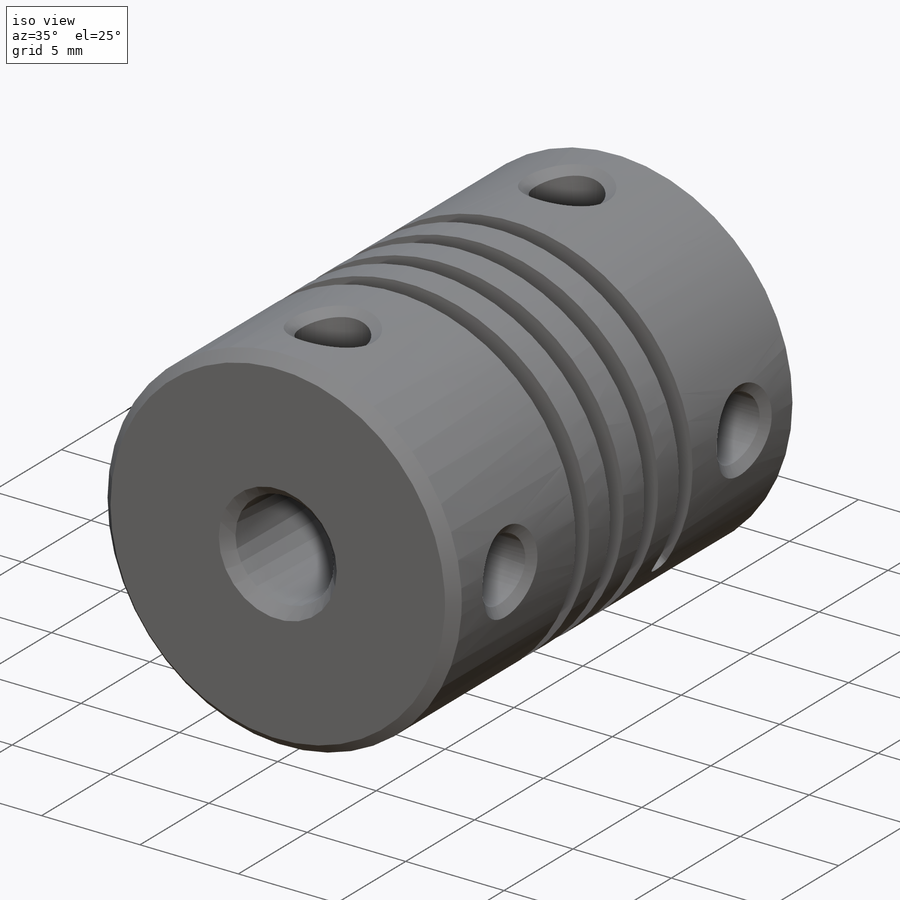
[diagram: iso view]
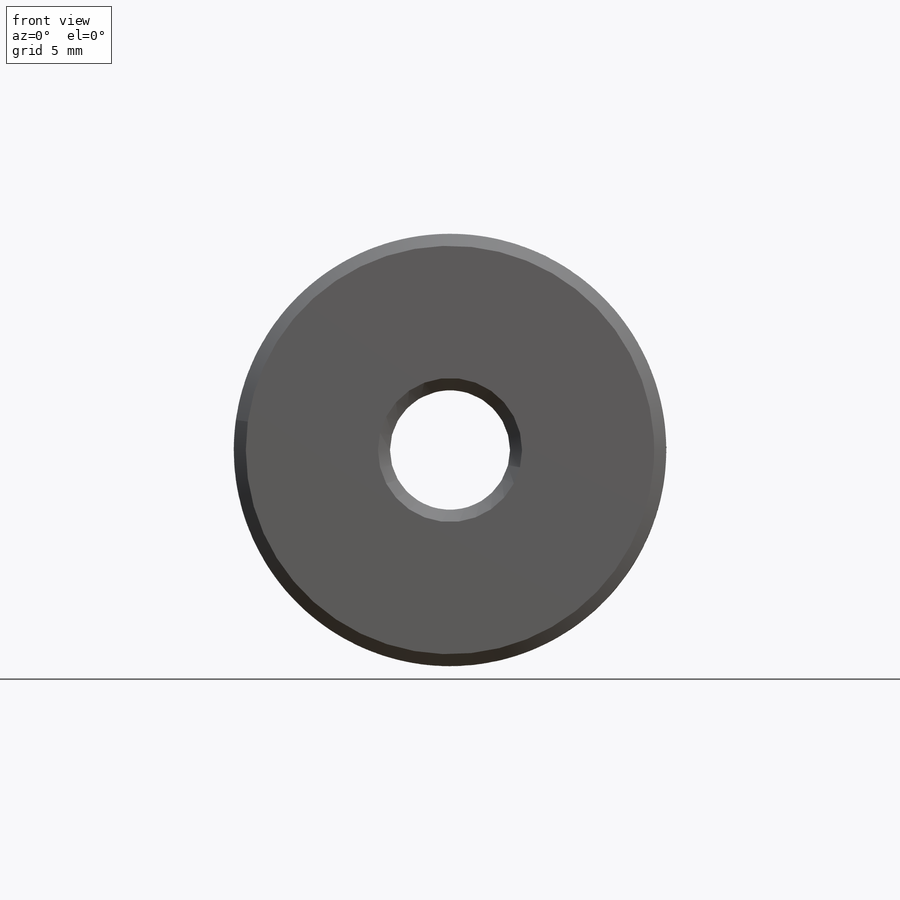
[diagram: front view]
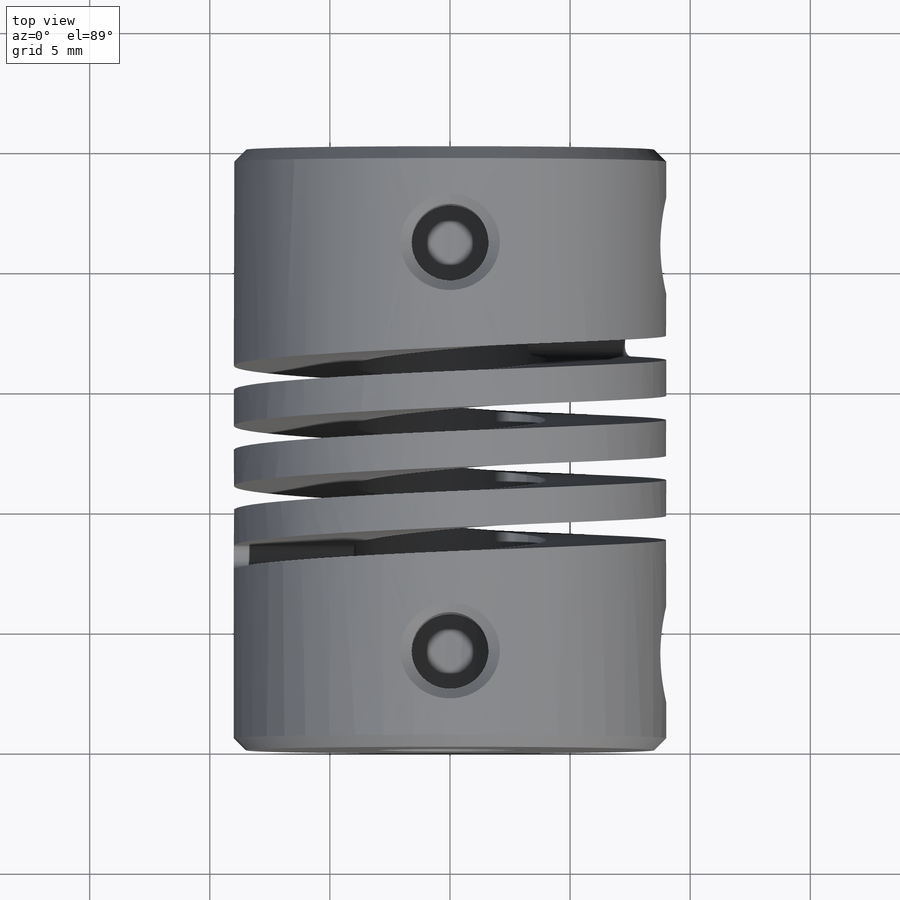
[diagram: top view]
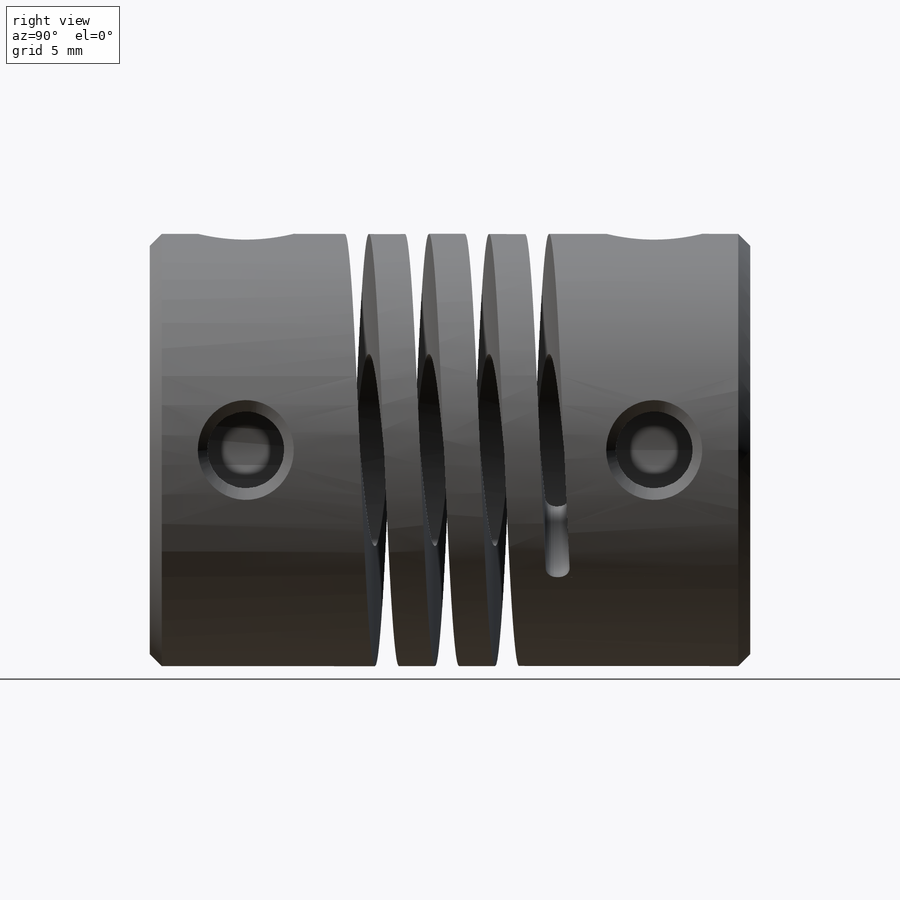
[diagram: right view]
SOLIDWORKS PART (.sldprt)
format: sldprt  version: not decoded by parser v0  size: 518,144 bytes
history: native  units: mm
features: sketch x7, cut_extrude x4, material x1, extrude x1, plane x1, helix x1, sweep x1, fillet x1, chamfer x1 (+12 scaffold rows collapsed)
feature tree (30):
  scaffold x12  (default folders/planes/origin — collapsed)
  material  "6061 Alloy"
  sketch  "Sketch1"  dims[D1=18.0mm]
  extrude  "Boss-Extrude1"  Depth=25mm
  plane  "Plane1"  Offset=8mm
  sketch  "Sketch2"
  helix  "Helix/Spiral1"  Pitch=9mm
  sketch  "Sketch3"  dims[D1=8.0mm D2=1.0mm D3=2.0mm]
  sweep  "Cut-Sweep1"
  sketch  "Sketch4"  dims[D1=5.0mm]
  cut_extrude  "Cut-Extrude1"  [1 undecoded]
  sketch  "Sketch5"  dims[D1=8.0mm]
  cut_extrude  "Cut-Extrude2"  Depth=17.5mm
  fillet  "Fillet1"  Radius=0.45mm
  sketch  "Sketch6"  dims[c1.D1=3.2mm c1.D2=3.2mm c1.D3=3.2mm c2.D2=4.0mm c2.D3=4.0mm]
  cut_extrude  "Cut-Extrude3"  [1 undecoded]
  sketch  "Sketch7"  dims[c1.D1=3.2mm c1.D2=3.2mm c1.D3=3.2mm c2.D2=4.0mm c2.D3=4.0mm]
  cut_extrude  "Cut-Extrude4"  [1 undecoded]
  chamfer  "Chamfer1"  Distance=0.5mm Angle=45deg
decode coverage: 11 of 16 modeling features carry decoded parameters
note: 3 parameter values undecoded
summary: no parameter record found for 3 features
note: suppression state not decoded; provenance and decode notes live in map.json
